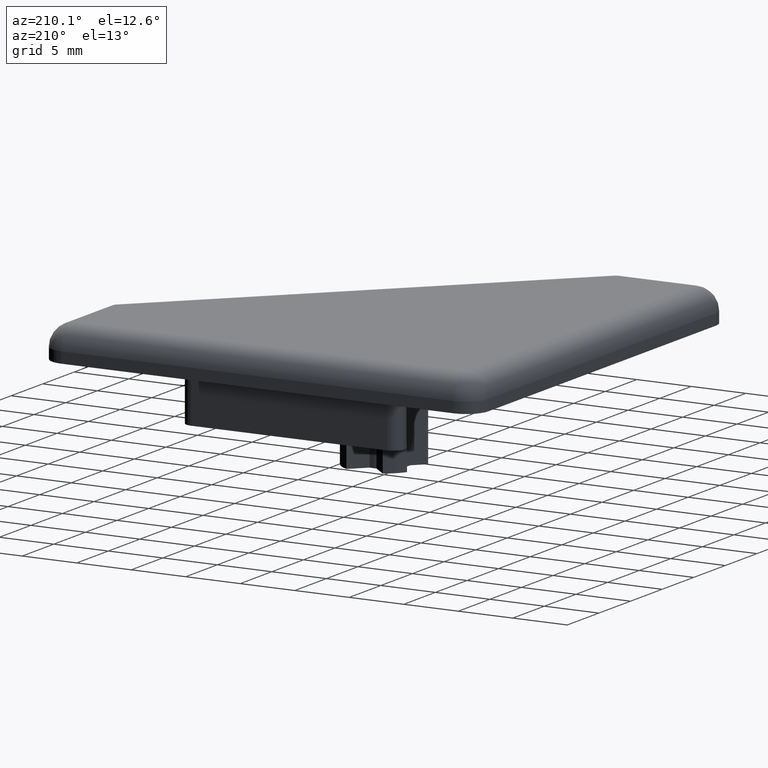
[diagram: clean part render]
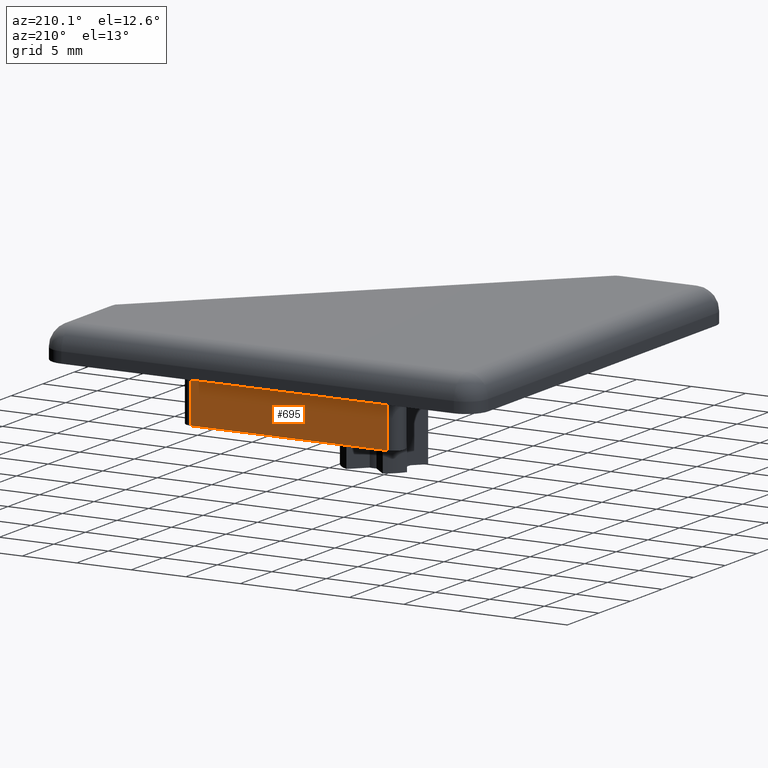
[diagram: same view with one face highlighted and labeled with its STEP entity id]
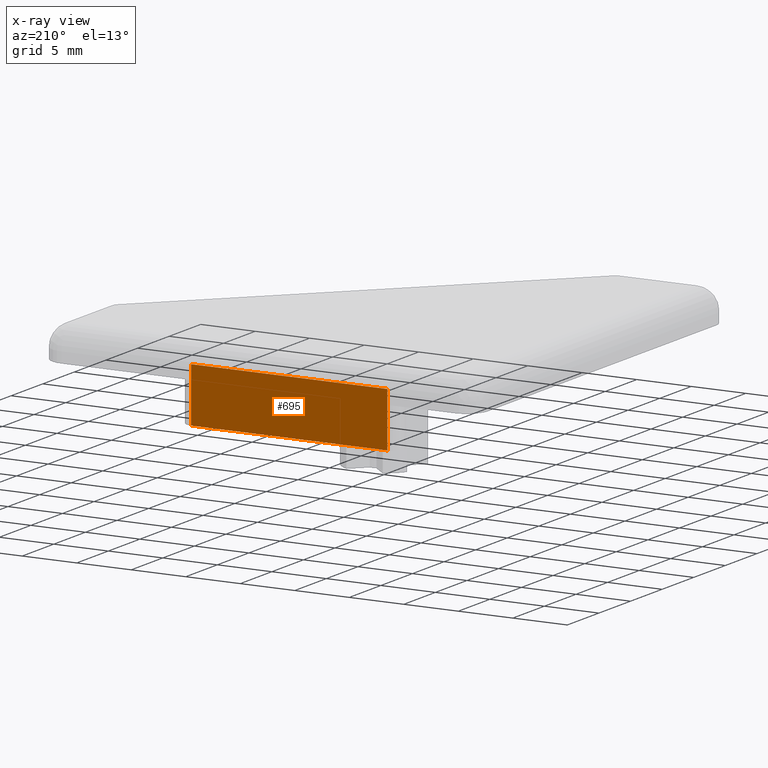
[diagram: x-ray of the same camera — body ghosted, the highlighted face saturated]
A machine part, auxiliary view. The second image highlights one B-rep face of the part: STEP entity #695.
The next image is the same camera in x-ray: the body ghosted, the highlighted face saturated — about 0% of this face is hidden behind the body in this view.
In plain terms, the highlighted planar face has unit normal (0, 1, 0).
Its self-contained STEP definition (entity closure, byte-faithful):
#32=PLANE($,#760);
#61=FACE_OUTER_BOUND($,#102,.T.);
#102=EDGE_LOOP($,(#549,#550,#551,#552));
#158=LINE($,#1128,#222);
#159=LINE($,#1131,#223);
#162=LINE($,#1140,#226);
#164=LINE($,#1144,#228);
#222=VECTOR($,#905,18.);
#223=VECTOR($,#908,5.);
#226=VECTOR($,#917,5.);
#228=VECTOR($,#923,18.);
#322=VERTEX_POINT($,#1122);
#324=VERTEX_POINT($,#1126);
#325=VERTEX_POINT($,#1130);
#328=VERTEX_POINT($,#1138);
#403=EDGE_CURVE($,#324,#322,#158,.T.);
#404=EDGE_CURVE($,#322,#325,#159,.T.);
#409=EDGE_CURVE($,#328,#324,#162,.T.);
#411=EDGE_CURVE($,#325,#328,#164,.T.);
#549=ORIENTED_EDGE($,*,*,#404,.F.);
#550=ORIENTED_EDGE($,*,*,#403,.F.);
#551=ORIENTED_EDGE($,*,*,#409,.F.);
#552=ORIENTED_EDGE($,*,*,#411,.F.);
#695=ADVANCED_FACE($,(#61),#32,.T.);
#760=AXIS2_PLACEMENT_3D($,#1143,#921,#922);
#905=DIRECTION($,(1.,0.,0.));
#908=DIRECTION($,(0.,0.,1.));
#917=DIRECTION($,(0.,0.,-1.));
#921=DIRECTION('center_axis',(0.,1.,0.));
#922=DIRECTION('ref_axis',(1.,0.,0.));
#923=DIRECTION($,(-1.,0.,0.));
#1122=CARTESIAN_POINT('',(29.,-5.,-5.));
#1126=CARTESIAN_POINT('',(11.,-5.,-5.));
#1128=CARTESIAN_POINT($,(30.,-5.,-5.));
#1130=CARTESIAN_POINT('',(29.,-5.,0.));
#1131=CARTESIAN_POINT($,(29.,-5.,0.));
#1138=CARTESIAN_POINT('',(11.,-5.,0.));
#1140=CARTESIAN_POINT($,(11.,-5.,0.));
#1143=CARTESIAN_POINT('Origin',(10.,-5.,0.));
#1144=CARTESIAN_POINT($,(13.1117688164019,-5.,0.));